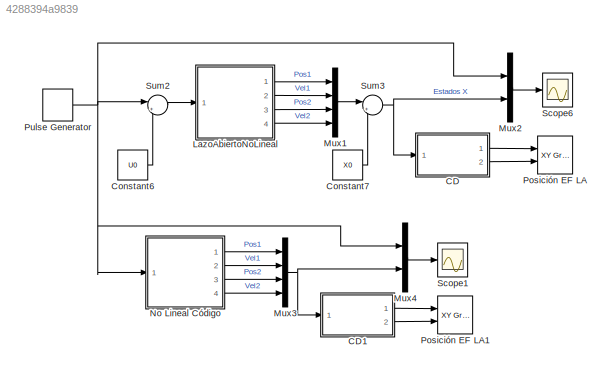
MODEL slx_4288394a9839
KIND model
CONFIG AbsTol = auto
CONFIG EnableMultiTasking = off
CONFIG FixedStep = 0.001
CONFIG MaxStep = auto
CONFIG MinStep = auto
CONFIG RelTol = 1e-3
CONFIG SampleTimeConstraint = Unconstrained
CONFIG Solver = ode4
CONFIG SolverName = ode4
CONFIG StartTime = 0.0
CONFIG StopTime = 10.0
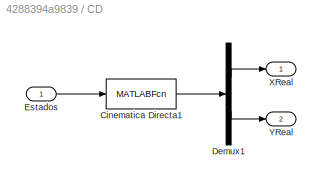
BLOCK [SubSystem] CD
  Ports = [1, 2]
  RequestExecContextInheritance = off
  TreatAsAtomicUnit = on
BLOCK [MATLABFcn] CD/Cinematica Directa1
  MATLABFcn = CinematicaDirecta
  OutputDimensions = 2
  Ports = [1, 1]
BLOCK [Demux] CD/Demux1
  DisplayOption = bar
  Outputs = 2
  Ports = [1, 2]
BLOCK [Inport] CD/Estados
  IconDisplay = Port number
BLOCK [Outport] CD/XReal
  IconDisplay = Port number
  VectorParamsAs1DForOutWhenUnconnected = off
BLOCK [Outport] CD/YReal
  IconDisplay = Port number
  Port = 2
  VectorParamsAs1DForOutWhenUnconnected = off
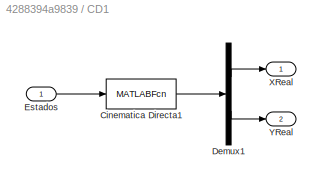
BLOCK [SubSystem] CD1
  Ports = [1, 2]
  RequestExecContextInheritance = off
  TreatAsAtomicUnit = on
BLOCK [MATLABFcn] CD1/Cinematica Directa1
  MATLABFcn = CinematicaDirecta
  OutputDimensions = 2
  Ports = [1, 1]
BLOCK [Demux] CD1/Demux1
  DisplayOption = bar
  Outputs = 2
  Ports = [1, 2]
BLOCK [Inport] CD1/Estados
  IconDisplay = Port number
BLOCK [Outport] CD1/XReal
  IconDisplay = Port number
  VectorParamsAs1DForOutWhenUnconnected = off
BLOCK [Outport] CD1/YReal
  IconDisplay = Port number
  Port = 2
  VectorParamsAs1DForOutWhenUnconnected = off
BLOCK [Constant] Constant6
  Value = U0
BLOCK [Constant] Constant7
  Value = X0
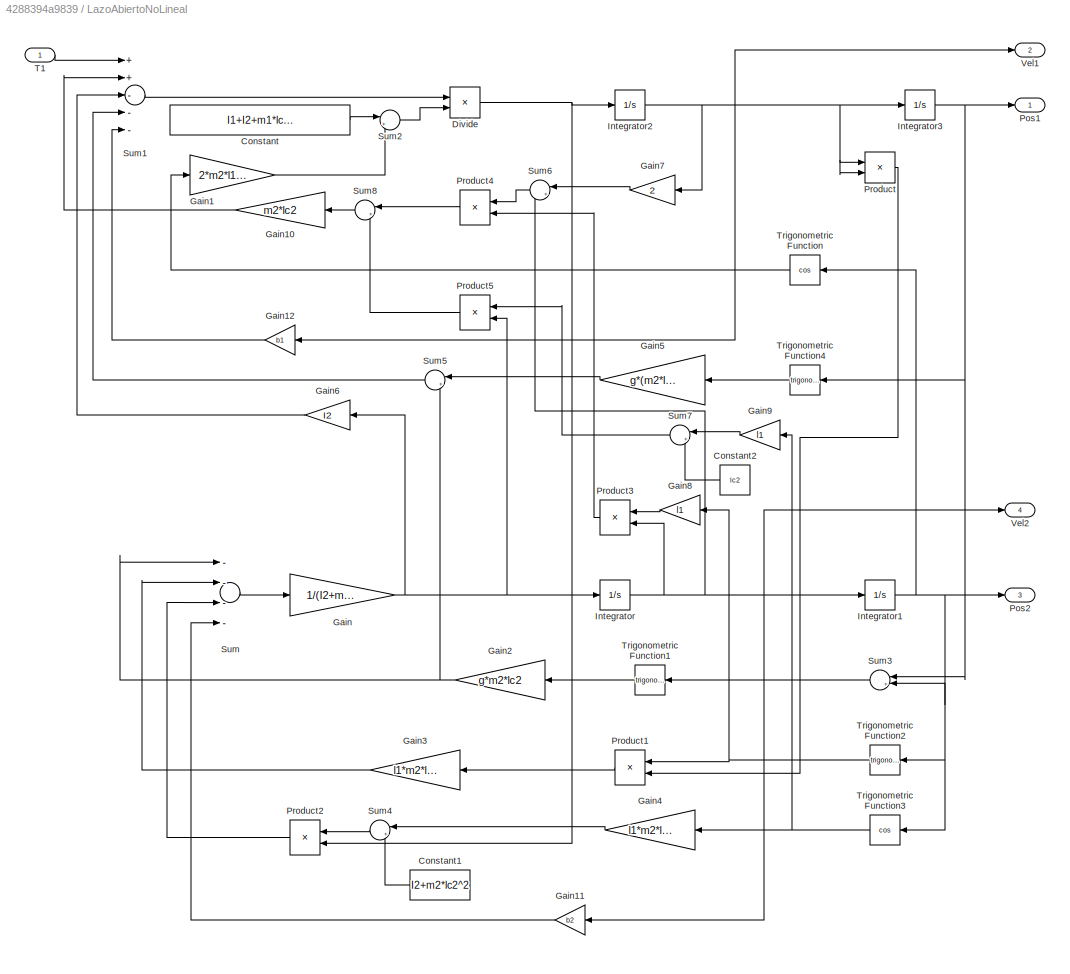
BLOCK [SubSystem] LazoAbiertoNoLineal
  Ports = [1, 4]
  RequestExecContextInheritance = off
BLOCK [Constant] LazoAbiertoNoLineal/Constant
  Value = I1+I2+m1*lc1^2+m2*(l1^2+lc2^2)
BLOCK [Constant] LazoAbiertoNoLineal/Constant1
  Value = I2+m2*lc2^2
BLOCK [Constant] LazoAbiertoNoLineal/Constant2
  Value = lc2
BLOCK [Product] LazoAbiertoNoLineal/Divide
  InputSameDT = off
  Inputs = */
  OutDataTypeStr = Inherit: Inherit via internal rule
  Ports = [2, 1]
  RndMeth = Floor
  SaturateOnIntegerOverflow = off
BLOCK [Gain] LazoAbiertoNoLineal/Gain
  Gain = 1/(I2+m2*lc2^2)
  OutDataTypeStr = Inherit: Inherit via internal rule
  ParamDataTypeStr = Inherit: Inherit via internal rule
  SaturateOnIntegerOverflow = off
BLOCK [Gain] LazoAbiertoNoLineal/Gain1
  Gain = 2*m2*l1*lc2
  OutDataTypeStr = Inherit: Inherit via internal rule
  ParamDataTypeStr = Inherit: Inherit via internal rule
  SaturateOnIntegerOverflow = off
BLOCK [Gain] LazoAbiertoNoLineal/Gain10
  Gain = m2*lc2
  OutDataTypeStr = Inherit: Inherit via internal rule
  ParamDataTypeStr = Inherit: Inherit via internal rule
  SaturateOnIntegerOverflow = off
BLOCK [Gain] LazoAbiertoNoLineal/Gain11
  Gain = b2
  OutDataTypeStr = Inherit: Inherit via internal rule
  ParamDataTypeStr = Inherit: Inherit via internal rule
  SaturateOnIntegerOverflow = off
BLOCK [Gain] LazoAbiertoNoLineal/Gain12
  Gain = b1
  OutDataTypeStr = Inherit: Inherit via internal rule
  ParamDataTypeStr = Inherit: Inherit via internal rule
  SaturateOnIntegerOverflow = off
BLOCK [Gain] LazoAbiertoNoLineal/Gain2
  Gain = g*m2*lc2
  OutDataTypeStr = Inherit: Inherit via internal rule
  ParamDataTypeStr = Inherit: Inherit via internal rule
  SaturateOnIntegerOverflow = off
BLOCK [Gain] LazoAbiertoNoLineal/Gain3
  Gain = l1*m2*lc2
  OutDataTypeStr = Inherit: Inherit via internal rule
  ParamDataTypeStr = Inherit: Inherit via internal rule
  SaturateOnIntegerOverflow = off
BLOCK [Gain] LazoAbiertoNoLineal/Gain4
  Gain = l1*m2*lc2
  OutDataTypeStr = Inherit: Inherit via internal rule
  ParamDataTypeStr = Inherit: Inherit via internal rule
  SaturateOnIntegerOverflow = off
BLOCK [Gain] LazoAbiertoNoLineal/Gain5
  Gain = g*(m2*l1+m1*lc1)
  OutDataTypeStr = Inherit: Inherit via internal rule
  ParamDataTypeStr = Inherit: Inherit via internal rule
  SaturateOnIntegerOverflow = off
BLOCK [Gain] LazoAbiertoNoLineal/Gain6
  Gain = I2
  OutDataTypeStr = Inherit: Inherit via internal rule
  ParamDataTypeStr = Inherit: Inherit via internal rule
  SaturateOnIntegerOverflow = off
BLOCK [Gain] LazoAbiertoNoLineal/Gain7
  Gain = 2
  OutDataTypeStr = Inherit: Inherit via internal rule
  ParamDataTypeStr = Inherit: Inherit via internal rule
  SaturateOnIntegerOverflow = off
BLOCK [Gain] LazoAbiertoNoLineal/Gain8
  Gain = l1
  OutDataTypeStr = Inherit: Inherit via internal rule
  ParamDataTypeStr = Inherit: Inherit via internal rule
  SaturateOnIntegerOverflow = off
BLOCK [Gain] LazoAbiertoNoLineal/Gain9
  Gain = l1
  OutDataTypeStr = Inherit: Inherit via internal rule
  ParamDataTypeStr = Inherit: Inherit via internal rule
  SaturateOnIntegerOverflow = off
BLOCK [Integrator] LazoAbiertoNoLineal/Integrator
  InitialCondition = X0(4)
  Ports = [1, 1]
BLOCK [Integrator] LazoAbiertoNoLineal/Integrator1
  InitialCondition = X0(3)
  Ports = [1, 1]
BLOCK [Integrator] LazoAbiertoNoLineal/Integrator2
  InitialCondition = X0(2)
  Ports = [1, 1]
BLOCK [Integrator] LazoAbiertoNoLineal/Integrator3
  InitialCondition = X0(1)
  Ports = [1, 1]
BLOCK [Outport] LazoAbiertoNoLineal/Pos1
  IconDisplay = Port number
  VectorParamsAs1DForOutWhenUnconnected = off
BLOCK [Outport] LazoAbiertoNoLineal/Pos2
  IconDisplay = Port number
  Port = 3
  VectorParamsAs1DForOutWhenUnconnected = off
BLOCK [Product] LazoAbiertoNoLineal/Product
  InputSameDT = off
  OutDataTypeStr = Inherit: Inherit via internal rule
  Ports = [2, 1]
  RndMeth = Floor
  SaturateOnIntegerOverflow = off
BLOCK [Product] LazoAbiertoNoLineal/Product1
  InputSameDT = off
  OutDataTypeStr = Inherit: Inherit via internal rule
  Ports = [2, 1]
  RndMeth = Floor
  SaturateOnIntegerOverflow = off
BLOCK [Product] LazoAbiertoNoLineal/Product2
  InputSameDT = off
  OutDataTypeStr = Inherit: Inherit via internal rule
  Ports = [2, 1]
  RndMeth = Floor
  SaturateOnIntegerOverflow = off
BLOCK [Product] LazoAbiertoNoLineal/Product3
  InputSameDT = off
  OutDataTypeStr = Inherit: Inherit via internal rule
  Ports = [2, 1]
  RndMeth = Floor
  SaturateOnIntegerOverflow = off
BLOCK [Product] LazoAbiertoNoLineal/Product4
  InputSameDT = off
  OutDataTypeStr = Inherit: Inherit via internal rule
  Ports = [2, 1]
  RndMeth = Floor
  SaturateOnIntegerOverflow = off
BLOCK [Product] LazoAbiertoNoLineal/Product5
  InputSameDT = off
  OutDataTypeStr = Inherit: Inherit via internal rule
  Ports = [2, 1]
  RndMeth = Floor
  SaturateOnIntegerOverflow = off
BLOCK [Sum] LazoAbiertoNoLineal/Sum
  InputSameDT = off
  Inputs = ----
  OutDataTypeStr = Inherit: Inherit via internal rule
  Ports = [4, 1]
  SaturateOnIntegerOverflow = off
BLOCK [Sum] LazoAbiertoNoLineal/Sum1
  InputSameDT = off
  Inputs = ++---
  OutDataTypeStr = Inherit: Inherit via internal rule
  Ports = [5, 1]
  SaturateOnIntegerOverflow = off
BLOCK [Sum] LazoAbiertoNoLineal/Sum2
  IconShape = round
  InputSameDT = off
  Inputs = |++
  OutDataTypeStr = Inherit: Inherit via internal rule
  Ports = [2, 1]
  SaturateOnIntegerOverflow = off
BLOCK [Sum] LazoAbiertoNoLineal/Sum3
  IconShape = round
  InputSameDT = off
  Inputs = |++
  OutDataTypeStr = Inherit: Inherit via internal rule
  Ports = [2, 1]
  SaturateOnIntegerOverflow = off
BLOCK [Sum] LazoAbiertoNoLineal/Sum4
  IconShape = round
  InputSameDT = off
  Inputs = |++
  OutDataTypeStr = Inherit: Inherit via internal rule
  Ports = [2, 1]
  SaturateOnIntegerOverflow = off
BLOCK [Sum] LazoAbiertoNoLineal/Sum5
  IconShape = round
  InputSameDT = off
  Inputs = |++
  OutDataTypeStr = Inherit: Inherit via internal rule
  Ports = [2, 1]
  SaturateOnIntegerOverflow = off
BLOCK [Sum] LazoAbiertoNoLineal/Sum6
  IconShape = round
  InputSameDT = off
  Inputs = |++
  OutDataTypeStr = Inherit: Inherit via internal rule
  Ports = [2, 1]
  SaturateOnIntegerOverflow = off
BLOCK [Sum] LazoAbiertoNoLineal/Sum7
  IconShape = round
  InputSameDT = off
  Inputs = |++
  OutDataTypeStr = Inherit: Inherit via internal rule
  Ports = [2, 1]
  SaturateOnIntegerOverflow = off
BLOCK [Sum] LazoAbiertoNoLineal/Sum8
  IconShape = round
  InputSameDT = off
  Inputs = |+-
  OutDataTypeStr = Inherit: Inherit via internal rule
  Ports = [2, 1]
  SaturateOnIntegerOverflow = off
BLOCK [Inport] LazoAbiertoNoLineal/T1
  IconDisplay = Port number
BLOCK [Trigonometry] LazoAbiertoNoLineal/Trigonometric Function
  Operator = cos
  Ports = [1, 1]
BLOCK [Trigonometry] LazoAbiertoNoLineal/Trigonometric Function1
  Ports = [1, 1]
BLOCK [Trigonometry] LazoAbiertoNoLineal/Trigonometric Function2
  Ports = [1, 1]
BLOCK [Trigonometry] LazoAbiertoNoLineal/Trigonometric Function3
  Operator = cos
  Ports = [1, 1]
BLOCK [Trigonometry] LazoAbiertoNoLineal/Trigonometric Function4
  Ports = [1, 1]
BLOCK [Outport] LazoAbiertoNoLineal/Vel1
  IconDisplay = Port number
  Port = 2
  VectorParamsAs1DForOutWhenUnconnected = off
BLOCK [Outport] LazoAbiertoNoLineal/Vel2
  IconDisplay = Port number
  Port = 4
  VectorParamsAs1DForOutWhenUnconnected = off
BLOCK [Mux] Mux1
  DisplayOption = bar
  Ports = [4, 1]
BLOCK [Mux] Mux2
  DisplayOption = bar
  Inputs = 2
  Ports = [2, 1]
BLOCK [Mux] Mux3
  DisplayOption = bar
  Ports = [4, 1]
BLOCK [Mux] Mux4
  DisplayOption = bar
  Inputs = 2
  Ports = [2, 1]
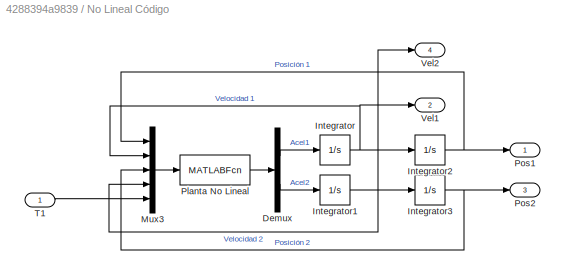
BLOCK [SubSystem] No Lineal Código
  Ports = [1, 4]
  RequestExecContextInheritance = off
BLOCK [Demux] No Lineal Código/Demux
  DisplayOption = bar
  Outputs = 2
  Ports = [1, 2]
BLOCK [Integrator] No Lineal Código/Integrator
  InitialCondition = XI(2)
  Ports = [1, 1]
BLOCK [Integrator] No Lineal Código/Integrator1
  InitialCondition = XI(4)
  Ports = [1, 1]
BLOCK [Integrator] No Lineal Código/Integrator2
  InitialCondition = XI(1)
  Ports = [1, 1]
BLOCK [Integrator] No Lineal Código/Integrator3
  InitialCondition = XI(3)
  Ports = [1, 1]
BLOCK [Mux] No Lineal Código/Mux3
  DisplayOption = bar
  Inputs = 5
  Ports = [5, 1]
BLOCK [MATLABFcn] No Lineal Código/Planta No Lineal
  MATLABFcn = PlantaNoLineal
  OutputDimensions = 2
  Ports = [1, 1]
BLOCK [Outport] No Lineal Código/Pos1
  IconDisplay = Port number
BLOCK [Outport] No Lineal Código/Pos2
  IconDisplay = Port number
  Port = 3
BLOCK [Inport] No Lineal Código/T1
  IconDisplay = Port number
BLOCK [Outport] No Lineal Código/Vel1
  IconDisplay = Port number
  Port = 2
BLOCK [Outport] No Lineal Código/Vel2
  IconDisplay = Port number
  Port = 4
BLOCK [Reference] Posición EF LA  REF=simulink/Sinks/XY Graph
  Ports = [2]
  SourceBlock = simulink/Sinks/XY Graph
  SourceProductBaseCode = SL
  SourceProductName = Simulink
  SourceType = XY scope.
BLOCK [Reference] Posición EF LA1  REF=simulink/Sinks/XY Graph
  Ports = [2]
  SourceBlock = simulink/Sinks/XY Graph
  SourceProductBaseCode = SL
  SourceProductName = Simulink
  SourceType = XY scope.
BLOCK [DiscretePulseGenerator] Pulse Generator
  Period = 15
  Ports = [0, 1]
  PulseType = Time based
  PulseWidth = 0.1
BLOCK [Scope] Scope1
  Floating = off
  NumInputPorts = 1
  Ports = [1]
  ScopeSpecificationString = Simulink.scopes.TimeScopeBlockCfg('CurrentConfiguration', extmgr.ConfigurationSet(extmgr.Configuration('Core','General UI',true,'FigureColor',[0 0 0]),extmgr.Configuration('Core','Source UI',true),extmgr.Configuration('Sources','WiredSimulink',true,'DataLoggingVariableName','ScopeData1'),extmgr.Configuration('Visuals','Time Domain',true,'SerializedDisplays',{struct('MinYLimReal','-8.4324','MaxYLim...<+2233ch>
BLOCK [Scope] Scope6
  Floating = off
  NumInputPorts = 1
  Ports = [1]
  ScopeSpecificationString = Simulink.scopes.TimeScopeBlockCfg('CurrentConfiguration', extmgr.ConfigurationSet(extmgr.Configuration('Core','General UI',true,'FigureColor',[0 0 0]),extmgr.Configuration('Core','Source UI',true),extmgr.Configuration('Sources','WiredSimulink',true),extmgr.Configuration('Visuals','Time Domain',true,'SerializedDisplays',{struct('MinYLimReal','-8.4324','MaxYLimReal','9.20799','YLabelReal','','MinYLi...<+2194ch>
BLOCK [Sum] Sum2
  IconShape = round
  InputSameDT = off
  Inputs = |++
  OutDataTypeStr = Inherit: Inherit via internal rule
  Ports = [2, 1]
  SaturateOnIntegerOverflow = off
BLOCK [Sum] Sum3
  IconShape = round
  InputSameDT = off
  Inputs = |+-
  OutDataTypeStr = Inherit: Inherit via internal rule
  Ports = [2, 1]
  SaturateOnIntegerOverflow = off
LINE CD/Cinematica Directa1:1 -> CD/Demux1:1
LINE CD/Demux1:1 -> CD/XReal:1
LINE CD/Demux1:2 -> CD/YReal:1
LINE CD/Estados:1 -> CD/Cinematica Directa1:1
LINE CD1/Cinematica Directa1:1 -> CD1/Demux1:1
LINE CD1/Demux1:1 -> CD1/XReal:1
LINE CD1/Demux1:2 -> CD1/YReal:1
LINE CD1/Estados:1 -> CD1/Cinematica Directa1:1
LINE CD1:1 -> Posición EF LA1:1
LINE CD1:2 -> Posición EF LA1:2
LINE CD:1 -> Posición EF LA:1
LINE CD:2 -> Posición EF LA:2
LINE Constant6:1 -> Sum2:2
LINE Constant7:1 -> Sum3:2
LINE LazoAbiertoNoLineal/Constant1:1 -> LazoAbiertoNoLineal/Sum4:2
LINE LazoAbiertoNoLineal/Constant2:1 -> LazoAbiertoNoLineal/Sum7:2
LINE LazoAbiertoNoLineal/Constant:1 -> LazoAbiertoNoLineal/Sum2:1
NET LazoAbiertoNoLineal/Divide:1 -> LazoAbiertoNoLineal/Integrator2:1, LazoAbiertoNoLineal/Product2:2
LINE LazoAbiertoNoLineal/Gain10:1 -> LazoAbiertoNoLineal/Sum1:2
LINE LazoAbiertoNoLineal/Gain11:1 -> LazoAbiertoNoLineal/Sum:4
LINE LazoAbiertoNoLineal/Gain12:1 -> LazoAbiertoNoLineal/Sum1:5
LINE LazoAbiertoNoLineal/Gain1:1 -> LazoAbiertoNoLineal/Sum2:2
NET LazoAbiertoNoLineal/Gain2:1 -> LazoAbiertoNoLineal/Sum5:2, LazoAbiertoNoLineal/Sum:1
LINE LazoAbiertoNoLineal/Gain3:1 -> LazoAbiertoNoLineal/Sum:2
LINE LazoAbiertoNoLineal/Gain4:1 -> LazoAbiertoNoLineal/Sum4:1
LINE LazoAbiertoNoLineal/Gain5:1 -> LazoAbiertoNoLineal/Sum5:1
LINE LazoAbiertoNoLineal/Gain6:1 -> LazoAbiertoNoLineal/Sum1:3
LINE LazoAbiertoNoLineal/Gain7:1 -> LazoAbiertoNoLineal/Sum6:1
LINE LazoAbiertoNoLineal/Gain8:1 -> LazoAbiertoNoLineal/Product3:1
LINE LazoAbiertoNoLineal/Gain9:1 -> LazoAbiertoNoLineal/Sum7:1
NET LazoAbiertoNoLineal/Gain:1 -> LazoAbiertoNoLineal/Gain6:1, LazoAbiertoNoLineal/Integrator:1, LazoAbiertoNoLineal/Product5:2
NET LazoAbiertoNoLineal/Integrator1:1 -> LazoAbiertoNoLineal/Pos2:1, LazoAbiertoNoLineal/Sum3:2, LazoAbiertoNoLineal/Trigonometric Function2:1, LazoAbiertoNoLineal/Trigonometric Function3:1, LazoAbiertoNoLineal/Trigonometric Function:1
NET LazoAbiertoNoLineal/Integrator2:1 -> LazoAbiertoNoLineal/Gain12:1, LazoAbiertoNoLineal/Gain7:1, LazoAbiertoNoLineal/Integrator3:1, LazoAbiertoNoLineal/Product:1, LazoAbiertoNoLineal/Product:2, LazoAbiertoNoLineal/Vel1:1
NET LazoAbiertoNoLineal/Integrator3:1 -> LazoAbiertoNoLineal/Pos1:1, LazoAbiertoNoLineal/Sum3:1, LazoAbiertoNoLineal/Trigonometric Function4:1
NET LazoAbiertoNoLineal/Integrator:1 -> LazoAbiertoNoLineal/Gain11:1, LazoAbiertoNoLineal/Integrator1:1, LazoAbiertoNoLineal/Product3:2, LazoAbiertoNoLineal/Sum6:2, LazoAbiertoNoLineal/Vel2:1
LINE LazoAbiertoNoLineal/Product1:1 -> LazoAbiertoNoLineal/Gain3:1
LINE LazoAbiertoNoLineal/Product2:1 -> LazoAbiertoNoLineal/Sum:3
LINE LazoAbiertoNoLineal/Product3:1 -> LazoAbiertoNoLineal/Product4:2
LINE LazoAbiertoNoLineal/Product4:1 -> LazoAbiertoNoLineal/Sum8:1
LINE LazoAbiertoNoLineal/Product5:1 -> LazoAbiertoNoLineal/Sum8:2
LINE LazoAbiertoNoLineal/Product:1 -> LazoAbiertoNoLineal/Product1:2
LINE LazoAbiertoNoLineal/Sum1:1 -> LazoAbiertoNoLineal/Divide:1
LINE LazoAbiertoNoLineal/Sum2:1 -> LazoAbiertoNoLineal/Divide:2
LINE LazoAbiertoNoLineal/Sum3:1 -> LazoAbiertoNoLineal/Trigonometric Function1:1
LINE LazoAbiertoNoLineal/Sum4:1 -> LazoAbiertoNoLineal/Product2:1
LINE LazoAbiertoNoLineal/Sum5:1 -> LazoAbiertoNoLineal/Sum1:4
LINE LazoAbiertoNoLineal/Sum6:1 -> LazoAbiertoNoLineal/Product4:1
LINE LazoAbiertoNoLineal/Sum7:1 -> LazoAbiertoNoLineal/Product5:1
LINE LazoAbiertoNoLineal/Sum8:1 -> LazoAbiertoNoLineal/Gain10:1
LINE LazoAbiertoNoLineal/Sum:1 -> LazoAbiertoNoLineal/Gain:1
LINE LazoAbiertoNoLineal/T1:1 -> LazoAbiertoNoLineal/Sum1:1
LINE LazoAbiertoNoLineal/Trigonometric Function1:1 -> LazoAbiertoNoLineal/Gain2:1
NET LazoAbiertoNoLineal/Trigonometric Function2:1 -> LazoAbiertoNoLineal/Gain8:1, LazoAbiertoNoLineal/Product1:1
NET LazoAbiertoNoLineal/Trigonometric Function3:1 -> LazoAbiertoNoLineal/Gain4:1, LazoAbiertoNoLineal/Gain9:1
LINE LazoAbiertoNoLineal/Trigonometric Function4:1 -> LazoAbiertoNoLineal/Gain5:1
LINE LazoAbiertoNoLineal/Trigonometric Function:1 -> LazoAbiertoNoLineal/Gain1:1
LINE LazoAbiertoNoLineal:1 -> Mux1:1
LINE LazoAbiertoNoLineal:2 -> Mux1:2
LINE LazoAbiertoNoLineal:3 -> Mux1:3
LINE LazoAbiertoNoLineal:4 -> Mux1:4
LINE Mux1:1 -> Sum3:1
LINE Mux2:1 -> Scope6:1
NET Mux3:1 -> CD1:1, Mux4:2
LINE Mux4:1 -> Scope1:1
LINE No Lineal Código/Demux:1 -> No Lineal Código/Integrator:1
LINE No Lineal Código/Demux:2 -> No Lineal Código/Integrator1:1
NET No Lineal Código/Integrator1:1 -> No Lineal Código/Integrator3:1, No Lineal Código/Mux3:4, No Lineal Código/Vel2:1
NET No Lineal Código/Integrator2:1 -> No Lineal Código/Mux3:1, No Lineal Código/Pos1:1
NET No Lineal Código/Integrator3:1 -> No Lineal Código/Mux3:3, No Lineal Código/Pos2:1
NET No Lineal Código/Integrator:1 -> No Lineal Código/Integrator2:1, No Lineal Código/Mux3:2, No Lineal Código/Vel1:1
LINE No Lineal Código/Mux3:1 -> No Lineal Código/Planta No Lineal:1
LINE No Lineal Código/Planta No Lineal:1 -> No Lineal Código/Demux:1
LINE No Lineal Código/T1:1 -> No Lineal Código/Mux3:5
LINE No Lineal Código:1 -> Mux3:1
LINE No Lineal Código:2 -> Mux3:2
LINE No Lineal Código:3 -> Mux3:3
LINE No Lineal Código:4 -> Mux3:4
NET Pulse Generator:1 -> Mux2:1, Mux4:1, No Lineal Código:1, Sum2:1
LINE Sum2:1 -> LazoAbiertoNoLineal:1
NET Sum3:1 -> CD:1, Mux2:2
note: NET lines group one-source signal fan-out (src -> all destinations, sorted); 1:1 wires keep LINE
